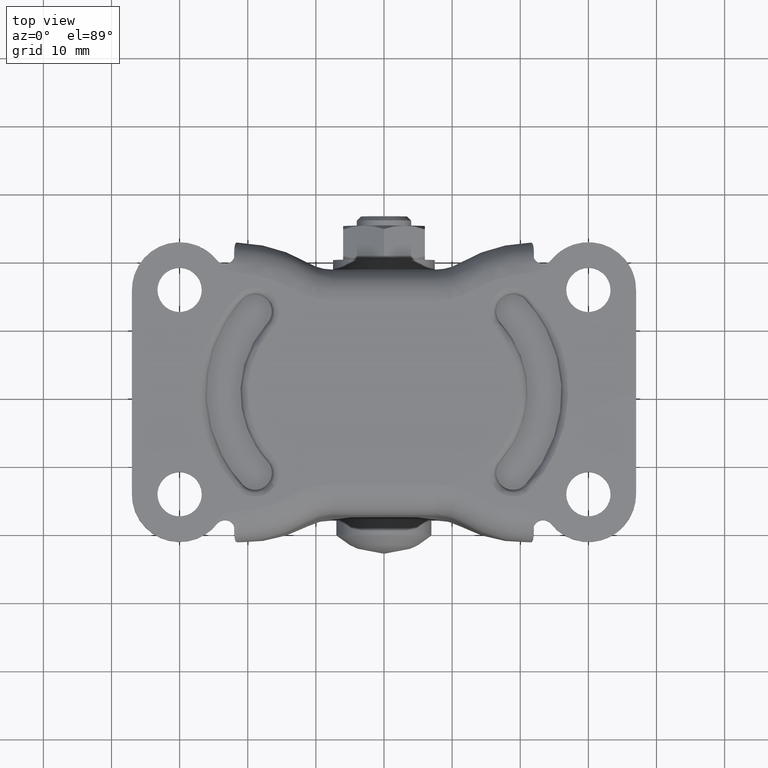
[diagram: clean part render]
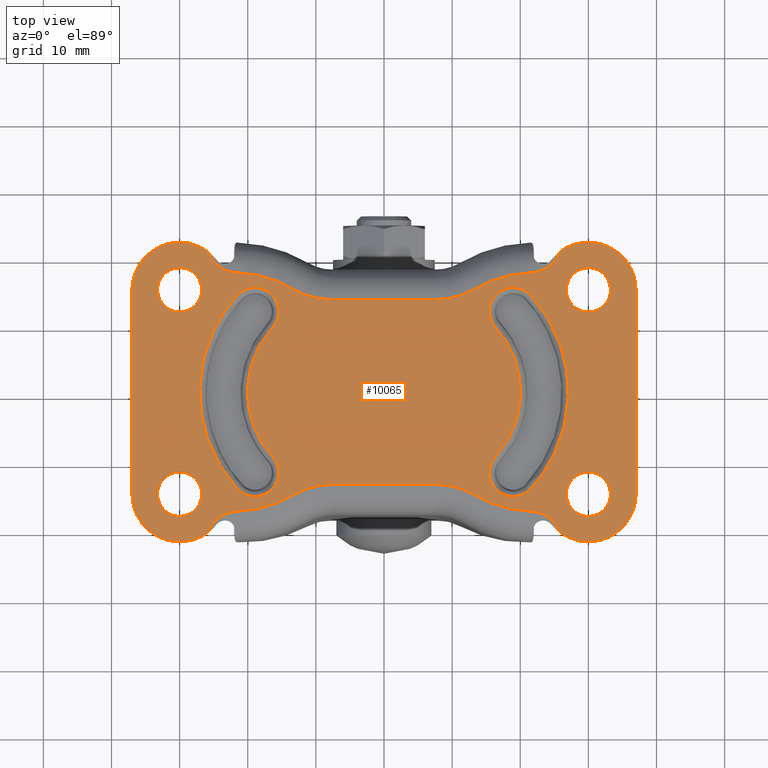
[diagram: same view with one face highlighted and labeled with its STEP entity id]
A machine part, top view. The second image highlights one B-rep face of the part: STEP entity #10065.
In plain terms, the highlighted face is a freeform B-spline surface patch.
Its self-contained STEP definition (entity closure, byte-faithful):
#2337=CARTESIAN_POINT('',(-30.383611262793419,11.772719039336801,-2.484500E-017));
#2338=VERTEX_POINT('',#2337);
#2339=CARTESIAN_POINT('',(-26.750000000000000,14.999999999999821,0.0));
#2340=VERTEX_POINT('',#2339);
#2341=CARTESIAN_POINT('',(-30.383611262793419,11.772719039336794,-2.484500E-017));
#2342=CARTESIAN_POINT('',(-30.192478389029340,11.749999999999824,0.0));
#2343=CARTESIAN_POINT('',(-30.0,11.749999999999821,0.0));
#2344=CARTESIAN_POINT('',(-26.750000000000007,11.749999999999819,0.0));
#2345=CARTESIAN_POINT('',(-26.750000000000000,14.999999999999821,0.0));
#2353=(BOUNDED_CURVE()B_SPLINE_CURVE(2,(#2341,#2342,#2343,#2344,#2345),.UNSPECIFIED.,.F.,.U.)B_SPLINE_CURVE_WITH_KNOTS((3,2,3),(0.229562473498996,0.250000000000000,0.500000000000000),.UNSPECIFIED.)CURVE()GEOMETRIC_REPRESENTATION_ITEM()RATIONAL_B_SPLINE_CURVE((0.956026754155255,0.976055948314143,1.0,0.707106781186547,1.0))REPRESENTATION_ITEM(''));
#2354=EDGE_CURVE('',#2338,#2340,#2353,.T.);
#2356=CARTESIAN_POINT('',(-29.801592246333168,18.243938094859971,-2.081668E-017));
#2357=VERTEX_POINT('',#2356);
#2358=CARTESIAN_POINT('',(-26.750000000000000,14.999999999999821,0.0));
#2359=CARTESIAN_POINT('',(-26.750000000000007,18.057294717106135,0.0));
#2360=CARTESIAN_POINT('',(-29.801592246333161,18.243938094859974,-2.081668E-017));
#2368=(BOUNDED_CURVE()B_SPLINE_CURVE(2,(#2358,#2359,#2360),.UNSPECIFIED.,.F.,.U.)B_SPLINE_CURVE_WITH_KNOTS((3,3),(0.500000000000000,0.739332962222973),.UNSPECIFIED.)CURVE()GEOMETRIC_REPRESENTATION_ITEM()RATIONAL_B_SPLINE_CURVE((1.0,0.719603993305420,0.976072041632492))REPRESENTATION_ITEM(''));
#2369=EDGE_CURVE('',#2340,#2357,#2368,.T.);
#2436=CARTESIAN_POINT('',(-33.250000000000000,14.999999999999821,0.0));
#2437=VERTEX_POINT('',#2436);
#2438=CARTESIAN_POINT('',(-33.250000000000000,14.999999999999821,0.0));
#2439=CARTESIAN_POINT('',(-33.250000000000007,12.113432790944220,0.0));
#2440=CARTESIAN_POINT('',(-30.383611262793416,11.772719039336803,-2.484500E-017));
#2448=(BOUNDED_CURVE()B_SPLINE_CURVE(2,(#2438,#2439,#2440),.UNSPECIFIED.,.F.,.U.)B_SPLINE_CURVE_WITH_KNOTS((3,3),(0.0,0.229562473498997),.UNSPECIFIED.)CURVE()GEOMETRIC_REPRESENTATION_ITEM()RATIONAL_B_SPLINE_CURVE((1.0,0.731050832872404,0.956026754155255))REPRESENTATION_ITEM(''));
#2449=EDGE_CURVE('',#2437,#2338,#2448,.T.);
#2483=CARTESIAN_POINT('',(-29.801592246333165,18.243938094859967,-2.081668E-017));
#2484=CARTESIAN_POINT('',(-29.900703519100531,18.249999999999826,0.0));
#2485=CARTESIAN_POINT('',(-30.0,18.249999999999819,0.0));
#2486=CARTESIAN_POINT('',(-33.249999999999993,18.249999999999826,0.0));
#2487=CARTESIAN_POINT('',(-33.250000000000000,14.999999999999821,0.0));
#2495=(BOUNDED_CURVE()B_SPLINE_CURVE(2,(#2483,#2484,#2485,#2486,#2487),.UNSPECIFIED.,.F.,.U.)B_SPLINE_CURVE_WITH_KNOTS((3,2,3),(0.739332962222974,0.750000000000000,1.0),.UNSPECIFIED.)CURVE()GEOMETRIC_REPRESENTATION_ITEM()RATIONAL_B_SPLINE_CURVE((0.976072041632493,0.987502787881128,1.0,0.707106781186547,1.0))REPRESENTATION_ITEM(''));
#2496=EDGE_CURVE('',#2357,#2437,#2495,.T.);
#2523=CARTESIAN_POINT('',(-30.383611262793419,-18.227280960663020,-2.484500E-017));
#2524=VERTEX_POINT('',#2523);
#2525=CARTESIAN_POINT('',(-26.750000000000000,-15.0,0.0));
#2526=VERTEX_POINT('',#2525);
#2527=CARTESIAN_POINT('',(-30.383611262793419,-18.227280960663016,-2.484500E-017));
#2528=CARTESIAN_POINT('',(-30.192478389029347,-18.250000000000000,0.0));
#2529=CARTESIAN_POINT('',(-30.0,-18.250000000000000,0.0));
#2530=CARTESIAN_POINT('',(-26.750000000000007,-18.250000000000000,0.0));
#2531=CARTESIAN_POINT('',(-26.750000000000000,-15.0,0.0));
#2539=(BOUNDED_CURVE()B_SPLINE_CURVE(2,(#2527,#2528,#2529,#2530,#2531),.UNSPECIFIED.,.F.,.U.)B_SPLINE_CURVE_WITH_KNOTS((3,2,3),(0.229562473498996,0.250000000000000,0.500000000000000),.UNSPECIFIED.)CURVE()GEOMETRIC_REPRESENTATION_ITEM()RATIONAL_B_SPLINE_CURVE((0.956026754155255,0.976055948314143,1.0,0.707106781186547,1.0))REPRESENTATION_ITEM(''));
#2540=EDGE_CURVE('',#2524,#2526,#2539,.T.);
#2542=CARTESIAN_POINT('',(-29.801592246333168,-11.756061905139861,-2.081668E-017));
#2543=VERTEX_POINT('',#2542);
#2544=CARTESIAN_POINT('',(-26.750000000000000,-15.0,0.0));
#2545=CARTESIAN_POINT('',(-26.750000000000007,-11.942705282893685,0.0));
#2546=CARTESIAN_POINT('',(-29.801592246333161,-11.756061905139855,-2.081668E-017));
#2554=(BOUNDED_CURVE()B_SPLINE_CURVE(2,(#2544,#2545,#2546),.UNSPECIFIED.,.F.,.U.)B_SPLINE_CURVE_WITH_KNOTS((3,3),(0.500000000000000,0.739332962222973),.UNSPECIFIED.)CURVE()GEOMETRIC_REPRESENTATION_ITEM()RATIONAL_B_SPLINE_CURVE((1.0,0.719603993305420,0.976072041632492))REPRESENTATION_ITEM(''));
#2555=EDGE_CURVE('',#2526,#2543,#2554,.T.);
#2622=CARTESIAN_POINT('',(-33.250000000000000,-15.0,0.0));
#2623=VERTEX_POINT('',#2622);
#2624=CARTESIAN_POINT('',(-33.250000000000000,-15.0,0.0));
#2625=CARTESIAN_POINT('',(-33.250000000000000,-17.886567209055592,0.0));
#2626=CARTESIAN_POINT('',(-30.383611262793426,-18.227280960663020,-2.484500E-017));
#2634=(BOUNDED_CURVE()B_SPLINE_CURVE(2,(#2624,#2625,#2626),.UNSPECIFIED.,.F.,.U.)B_SPLINE_CURVE_WITH_KNOTS((3,3),(0.0,0.229562473498996),.UNSPECIFIED.)CURVE()GEOMETRIC_REPRESENTATION_ITEM()RATIONAL_B_SPLINE_CURVE((1.0,0.731050832872405,0.956026754155255))REPRESENTATION_ITEM(''));
#2635=EDGE_CURVE('',#2623,#2524,#2634,.T.);
#2669=CARTESIAN_POINT('',(-29.801592246333165,-11.756061905139854,-2.081668E-017));
#2670=CARTESIAN_POINT('',(-29.900703519100531,-11.750000000000002,0.0));
#2671=CARTESIAN_POINT('',(-30.0,-11.750000000000000,0.0));
#2672=CARTESIAN_POINT('',(-33.249999999999993,-11.750000000000004,0.0));
#2673=CARTESIAN_POINT('',(-33.250000000000000,-15.0,0.0));
#2681=(BOUNDED_CURVE()B_SPLINE_CURVE(2,(#2669,#2670,#2671,#2672,#2673),.UNSPECIFIED.,.F.,.U.)B_SPLINE_CURVE_WITH_KNOTS((3,2,3),(0.739332962222974,0.750000000000000,1.0),.UNSPECIFIED.)CURVE()GEOMETRIC_REPRESENTATION_ITEM()RATIONAL_B_SPLINE_CURVE((0.976072041632493,0.987502787881128,1.0,0.707106781186547,1.0))REPRESENTATION_ITEM(''));
#2682=EDGE_CURVE('',#2543,#2623,#2681,.T.);
#2709=CARTESIAN_POINT('',(29.616388737206581,11.772719039336801,-2.484500E-017));
#2710=VERTEX_POINT('',#2709);
#2711=CARTESIAN_POINT('',(33.250000000000000,14.999999999999821,0.0));
#2712=VERTEX_POINT('',#2711);
#2713=CARTESIAN_POINT('',(29.616388737206584,11.772719039336794,-2.484500E-017));
#2714=CARTESIAN_POINT('',(29.807521610970657,11.749999999999824,0.0));
#2715=CARTESIAN_POINT('',(30.0,11.749999999999821,0.0));
#2716=CARTESIAN_POINT('',(33.249999999999993,11.749999999999819,0.0));
#2717=CARTESIAN_POINT('',(33.250000000000000,14.999999999999821,0.0));
#2725=(BOUNDED_CURVE()B_SPLINE_CURVE(2,(#2713,#2714,#2715,#2716,#2717),.UNSPECIFIED.,.F.,.U.)B_SPLINE_CURVE_WITH_KNOTS((3,2,3),(0.229562473498996,0.250000000000000,0.500000000000000),.UNSPECIFIED.)CURVE()GEOMETRIC_REPRESENTATION_ITEM()RATIONAL_B_SPLINE_CURVE((0.956026754155255,0.976055948314143,1.0,0.707106781186547,1.0))REPRESENTATION_ITEM(''));
#2726=EDGE_CURVE('',#2710,#2712,#2725,.T.);
#2728=CARTESIAN_POINT('',(30.198407753666839,18.243938094859971,-2.081668E-017));
#2729=VERTEX_POINT('',#2728);
#2730=CARTESIAN_POINT('',(33.250000000000000,14.999999999999821,0.0));
#2731=CARTESIAN_POINT('',(33.250000000000000,18.057294717106135,0.0));
#2732=CARTESIAN_POINT('',(30.198407753666832,18.243938094859963,-2.081668E-017));
#2740=(BOUNDED_CURVE()B_SPLINE_CURVE(2,(#2730,#2731,#2732),.UNSPECIFIED.,.F.,.U.)B_SPLINE_CURVE_WITH_KNOTS((3,3),(0.500000000000000,0.739332962222973),.UNSPECIFIED.)CURVE()GEOMETRIC_REPRESENTATION_ITEM()RATIONAL_B_SPLINE_CURVE((1.0,0.719603993305420,0.976072041632492))REPRESENTATION_ITEM(''));
#2741=EDGE_CURVE('',#2712,#2729,#2740,.T.);
#2808=CARTESIAN_POINT('',(26.750000000000000,14.999999999999821,0.0));
#2809=VERTEX_POINT('',#2808);
#2810=CARTESIAN_POINT('',(26.750000000000000,14.999999999999821,0.0));
#2811=CARTESIAN_POINT('',(26.749999999999993,12.113432790944220,0.0));
#2812=CARTESIAN_POINT('',(29.616388737206581,11.772719039336804,-2.484500E-017));
#2820=(BOUNDED_CURVE()B_SPLINE_CURVE(2,(#2810,#2811,#2812),.UNSPECIFIED.,.F.,.U.)B_SPLINE_CURVE_WITH_KNOTS((3,3),(0.0,0.229562473498996),.UNSPECIFIED.)CURVE()GEOMETRIC_REPRESENTATION_ITEM()RATIONAL_B_SPLINE_CURVE((1.0,0.731050832872404,0.956026754155255))REPRESENTATION_ITEM(''));
#2821=EDGE_CURVE('',#2809,#2710,#2820,.T.);
#2855=CARTESIAN_POINT('',(30.198407753666832,18.243938094859971,-2.081668E-017));
#2856=CARTESIAN_POINT('',(30.099296480899472,18.249999999999815,0.0));
#2857=CARTESIAN_POINT('',(30.0,18.249999999999819,0.0));
#2858=CARTESIAN_POINT('',(26.750000000000007,18.249999999999826,0.0));
#2859=CARTESIAN_POINT('',(26.750000000000000,14.999999999999821,0.0));
#2867=(BOUNDED_CURVE()B_SPLINE_CURVE(2,(#2855,#2856,#2857,#2858,#2859),.UNSPECIFIED.,.F.,.U.)B_SPLINE_CURVE_WITH_KNOTS((3,2,3),(0.739332962222974,0.750000000000000,1.0),.UNSPECIFIED.)CURVE()GEOMETRIC_REPRESENTATION_ITEM()RATIONAL_B_SPLINE_CURVE((0.976072041632493,0.987502787881128,1.0,0.707106781186547,1.0))REPRESENTATION_ITEM(''));
#2868=EDGE_CURVE('',#2729,#2809,#2867,.T.);
#2895=CARTESIAN_POINT('',(29.616388737206581,-18.227280960663020,-2.484500E-017));
#2896=VERTEX_POINT('',#2895);
#2897=CARTESIAN_POINT('',(33.250000000000000,-15.0,0.0));
#2898=VERTEX_POINT('',#2897);
#2899=CARTESIAN_POINT('',(29.616388737206581,-18.227280960663023,-2.484500E-017));
#2900=CARTESIAN_POINT('',(29.807521610970660,-18.249999999999996,0.0));
#2901=CARTESIAN_POINT('',(30.0,-18.250000000000000,0.0));
#2902=CARTESIAN_POINT('',(33.249999999999993,-18.250000000000000,0.0));
#2903=CARTESIAN_POINT('',(33.250000000000000,-15.0,0.0));
#2911=(BOUNDED_CURVE()B_SPLINE_CURVE(2,(#2899,#2900,#2901,#2902,#2903),.UNSPECIFIED.,.F.,.U.)B_SPLINE_CURVE_WITH_KNOTS((3,2,3),(0.229562473498996,0.250000000000000,0.500000000000000),.UNSPECIFIED.)CURVE()GEOMETRIC_REPRESENTATION_ITEM()RATIONAL_B_SPLINE_CURVE((0.956026754155255,0.976055948314143,1.0,0.707106781186547,1.0))REPRESENTATION_ITEM(''));
#2912=EDGE_CURVE('',#2896,#2898,#2911,.T.);
#2914=CARTESIAN_POINT('',(30.198407753666839,-11.756061905139850,-2.081668E-017));
#2915=VERTEX_POINT('',#2914);
#2916=CARTESIAN_POINT('',(33.250000000000000,-15.0,0.0));
#2917=CARTESIAN_POINT('',(33.250000000000000,-11.942705282893685,0.0));
#2918=CARTESIAN_POINT('',(30.198407753666832,-11.756061905139855,-2.081668E-017));
#2926=(BOUNDED_CURVE()B_SPLINE_CURVE(2,(#2916,#2917,#2918),.UNSPECIFIED.,.F.,.U.)B_SPLINE_CURVE_WITH_KNOTS((3,3),(0.500000000000000,0.739332962222973),.UNSPECIFIED.)CURVE()GEOMETRIC_REPRESENTATION_ITEM()RATIONAL_B_SPLINE_CURVE((1.0,0.719603993305420,0.976072041632492))REPRESENTATION_ITEM(''));
#2927=EDGE_CURVE('',#2898,#2915,#2926,.T.);
#2994=CARTESIAN_POINT('',(26.750000000000000,-15.0,0.0));
#2995=VERTEX_POINT('',#2994);
#2996=CARTESIAN_POINT('',(26.750000000000000,-15.0,0.0));
#2997=CARTESIAN_POINT('',(26.749999999999993,-17.886567209055599,0.0));
#2998=CARTESIAN_POINT('',(29.616388737206584,-18.227280960663023,-2.484500E-017));
#3006=(BOUNDED_CURVE()B_SPLINE_CURVE(2,(#2996,#2997,#2998),.UNSPECIFIED.,.F.,.U.)B_SPLINE_CURVE_WITH_KNOTS((3,3),(0.0,0.229562473498996),.UNSPECIFIED.)CURVE()GEOMETRIC_REPRESENTATION_ITEM()RATIONAL_B_SPLINE_CURVE((1.0,0.731050832872404,0.956026754155255))REPRESENTATION_ITEM(''));
#3007=EDGE_CURVE('',#2995,#2896,#3006,.T.);
#3041=CARTESIAN_POINT('',(30.198407753666832,-11.756061905139855,-2.081668E-017));
#3042=CARTESIAN_POINT('',(30.099296480899472,-11.750000000000004,0.0));
#3043=CARTESIAN_POINT('',(30.0,-11.750000000000000,0.0));
#3044=CARTESIAN_POINT('',(26.750000000000007,-11.750000000000004,0.0));
#3045=CARTESIAN_POINT('',(26.750000000000000,-15.0,0.0));
#3053=(BOUNDED_CURVE()B_SPLINE_CURVE(2,(#3041,#3042,#3043,#3044,#3045),.UNSPECIFIED.,.F.,.U.)B_SPLINE_CURVE_WITH_KNOTS((3,2,3),(0.739332962222974,0.750000000000000,1.0),.UNSPECIFIED.)CURVE()GEOMETRIC_REPRESENTATION_ITEM()RATIONAL_B_SPLINE_CURVE((0.976072041632493,0.987502787881128,1.0,0.707106781186547,1.0))REPRESENTATION_ITEM(''));
#3054=EDGE_CURVE('',#2915,#2995,#3053,.T.);
#5459=CARTESIAN_POINT('',(-25.811329888295749,20.608479535071201,0.0));
#5460=VERTEX_POINT('',#5459);
#5474=CARTESIAN_POINT('',(-21.484265850218950,17.492088912298900,0.0));
#5475=VERTEX_POINT('',#5474);
#5476=CARTESIAN_POINT('',(-21.484265850218950,17.492088912298900,0.0));
#5477=CARTESIAN_POINT('',(-21.603383213129010,17.495743704170309,0.0));
#5478=CARTESIAN_POINT('',(-21.722158548124909,17.503726703638581,0.0));
#5479=CARTESIAN_POINT('',(-21.959026405725790,17.528333382634109,0.0));
#5480=CARTESIAN_POINT('',(-22.077092583931659,17.544984488697281,0.0));
#5481=CARTESIAN_POINT('',(-22.426547924071730,17.607248886891320,0.0));
#5482=CARTESIAN_POINT('',(-22.654490383674279,17.665208486618280,0.0));
#5483=CARTESIAN_POINT('',(-23.100443050177020,17.813624331418350,0.0));
#5484=CARTESIAN_POINT('',(-23.318518422526392,17.904103882154502,0.0));
#5485=CARTESIAN_POINT('',(-23.743908252633570,18.119320720896820,0.0));
#5486=CARTESIAN_POINT('',(-23.945852131464530,18.241335012722860,0.0));
#5487=CARTESIAN_POINT('',(-24.328809851242990,18.513408842431360,0.0));
#5488=CARTESIAN_POINT('',(-24.509825656312628,18.663465748484452,0.0));
#5489=CARTESIAN_POINT('',(-24.722437996194909,18.869337163501420,0.0));
#5490=CARTESIAN_POINT('',(-24.764273718392921,18.911431652881980,0.0));
#5491=CARTESIAN_POINT('',(-24.846540707122859,18.997502534817350,0.0));
#5492=CARTESIAN_POINT('',(-24.886905566092359,19.041417946322468,0.0));
#5493=CARTESIAN_POINT('',(-25.004800353540158,19.174808146622329,0.0));
#5494=CARTESIAN_POINT('',(-25.079486635391621,19.266286797667259,0.0));
#5495=CARTESIAN_POINT('',(-25.291991180504471,19.548263164655431,0.0));
#5496=CARTESIAN_POINT('',(-25.418324794318519,19.746255839746791,0.0));
#5497=CARTESIAN_POINT('',(-25.584271886973191,20.058615912029079,0.0));
#5498=CARTESIAN_POINT('',(-25.635645089158231,20.165308835004360,0.0));
#5499=CARTESIAN_POINT('',(-25.730187854273488,20.384048430876700,0.0));
#5500=CARTESIAN_POINT('',(-25.773072197983112,20.495473449877331,0.0));
#5501=CARTESIAN_POINT('',(-25.811329888295749,20.608479535071201,0.0));
#5502=B_SPLINE_CURVE_WITH_KNOTS('',3,(#5476,#5477,#5478,#5479,#5480,#5481,#5482,#5483,#5484,#5485,#5486,#5487,#5488,#5489,#5490,#5491,#5492,#5493,#5494,#5495,#5496,#5497,#5498,#5499,#5500,#5501),.UNSPECIFIED.,.F.,.U.,(4,2,2,2,2,2,2,2,2,2,2,2,4),(0.0,0.062499999999999,0.124999999999998,0.249999999999997,0.374999999999996,0.499999999999996,0.624999999999995,0.656249999999995,0.687499999999995,0.749999999999997,0.875000000000000,0.937500000000000,1.0),.UNSPECIFIED.);
#5503=EDGE_CURVE('',#5475,#5460,#5502,.T.);
#5628=CARTESIAN_POINT('',(-13.418852226916959,15.145858966433151,0.0));
#5629=VERTEX_POINT('',#5628);
#5659=CARTESIAN_POINT('',(-13.418852226916959,15.145858966433151,0.0));
#5660=CARTESIAN_POINT('',(-17.148994104475438,17.359072905651573,0.0));
#5661=CARTESIAN_POINT('',(-21.484265850218950,17.492088912298929,0.0));
#5669=(BOUNDED_CURVE()B_SPLINE_CURVE(2,(#5659,#5660,#5661),.UNSPECIFIED.,.F.,.U.)CURVE()GEOMETRIC_REPRESENTATION_ITEM()QUASI_UNIFORM_CURVE()RATIONAL_B_SPLINE_CURVE((1.0,0.968312146698987,1.0))REPRESENTATION_ITEM(''));
#5670=EDGE_CURVE('',#5629,#5475,#5669,.T.);
#5692=CARTESIAN_POINT('',(-7.601734732925700,13.550000000000001,0.0));
#5693=VERTEX_POINT('',#5692);
#5723=CARTESIAN_POINT('',(-7.601734732925700,13.550000000000001,0.0));
#5724=CARTESIAN_POINT('',(-10.729196454978963,13.549999119394657,0.0));
#5725=CARTESIAN_POINT('',(-13.418852226916970,15.145858966433151,0.0));
#5733=(BOUNDED_CURVE()B_SPLINE_CURVE(2,(#5723,#5724,#5725),.UNSPECIFIED.,.F.,.U.)CURVE()GEOMETRIC_REPRESENTATION_ITEM()QUASI_UNIFORM_CURVE()RATIONAL_B_SPLINE_CURVE((1.0,0.964368245974227,1.0))REPRESENTATION_ITEM(''));
#5734=EDGE_CURVE('',#5693,#5629,#5733,.T.);
#5753=CARTESIAN_POINT('',(7.601737942846899,13.550000000000001,0.0));
#5754=VERTEX_POINT('',#5753);
#5776=CARTESIAN_POINT('',(7.601737942846899,13.550000000000001,0.0));
#5777=CARTESIAN_POINT('',(-7.601734732925700,13.550000000000001,0.0));
#5778=QUASI_UNIFORM_CURVE('',1,(#5776,#5777),.UNSPECIFIED.,.F.,.U.);
#5779=EDGE_CURVE('',#5754,#5693,#5778,.T.);
#5801=CARTESIAN_POINT('',(13.418852226916821,15.145858966433151,0.0));
#5802=VERTEX_POINT('',#5801);
#5832=CARTESIAN_POINT('',(13.418852226916830,15.145858966433130,0.0));
#5833=CARTESIAN_POINT('',(10.729197939147538,13.549999999999999,0.0));
#5834=CARTESIAN_POINT('',(7.601737942846899,13.550000000000001,0.0));
#5842=(BOUNDED_CURVE()B_SPLINE_CURVE(2,(#5832,#5833,#5834),.UNSPECIFIED.,.F.,.U.)CURVE()GEOMETRIC_REPRESENTATION_ITEM()QUASI_UNIFORM_CURVE()RATIONAL_B_SPLINE_CURVE((1.0,0.964368283221072,1.0))REPRESENTATION_ITEM(''));
#5843=EDGE_CURVE('',#5802,#5754,#5842,.T.);
#5865=CARTESIAN_POINT('',(21.484266556458799,17.492088933967949,0.0));
#5866=VERTEX_POINT('',#5865);
#5896=CARTESIAN_POINT('',(21.484266556458810,17.492088933967960,0.0));
#5897=CARTESIAN_POINT('',(17.148994428516772,17.359073097915818,0.0));
#5898=CARTESIAN_POINT('',(13.418852226916830,15.145858966433151,0.0));
#5906=(BOUNDED_CURVE()B_SPLINE_CURVE(2,(#5896,#5897,#5898),.UNSPECIFIED.,.F.,.U.)CURVE()GEOMETRIC_REPRESENTATION_ITEM()QUASI_UNIFORM_CURVE()RATIONAL_B_SPLINE_CURVE((1.0,0.968312141452394,1.0))REPRESENTATION_ITEM(''));
#5907=EDGE_CURVE('',#5866,#5802,#5906,.T.);
#6057=CARTESIAN_POINT('',(25.811331118543048,20.608480453876250,0.0));
#6058=VERTEX_POINT('',#6057);
#6059=CARTESIAN_POINT('',(25.811331118543048,20.608480453876250,0.0));
#6060=CARTESIAN_POINT('',(25.734876977442362,20.382649012749368,0.0));
#6061=CARTESIAN_POINT('',(25.641106915643711,20.166089080188339,0.0));
#6062=CARTESIAN_POINT('',(25.420880339941942,19.750578404918659,0.0));
#6063=CARTESIAN_POINT('',(25.294410312498130,19.551616285075340,0.0));
#6064=CARTESIAN_POINT('',(25.115537968417339,19.314087338812651,0.0));
#6065=CARTESIAN_POINT('',(25.078723926748921,19.267161662336310,0.0));
#6066=CARTESIAN_POINT('',(25.003649805187312,19.175234823182180,0.0));
#6067=CARTESIAN_POINT('',(24.965313191825921,19.130129615385140,0.0));
#6068=CARTESIAN_POINT('',(24.847949080114962,18.997340984830480,0.0));
#6069=CARTESIAN_POINT('',(24.766570856343151,18.912180748537359,0.0));
#6070=CARTESIAN_POINT('',(24.513248478083661,18.666561803001930,0.0));
#6071=CARTESIAN_POINT('',(24.332169380936271,18.515908221766001,0.0));
#6072=CARTESIAN_POINT('',(24.090479523084781,18.344057723574419,0.0));
#6073=CARTESIAN_POINT('',(24.041275612655689,18.310454353578699,0.0));
#6074=CARTESIAN_POINT('',(23.941788957687649,18.245237458435010,0.0));
#6075=CARTESIAN_POINT('',(23.891575919974059,18.213663554685720,0.0));
#6076=CARTESIAN_POINT('',(23.739555270228198,18.121984698522461,0.0));
#6077=CARTESIAN_POINT('',(23.636368179054841,18.064918069597869,0.0));
#6078=CARTESIAN_POINT('',(23.321428206761141,17.905564847510441,0.0));
#6079=CARTESIAN_POINT('',(23.104326609287799,17.815058882302889,0.0));
#6080=CARTESIAN_POINT('',(22.824019945166871,17.721594151849452,0.0));
#6081=CARTESIAN_POINT('',(22.767509731892410,17.703889871680090,0.0));
#6082=CARTESIAN_POINT('',(22.653581710271371,17.670480303094401,0.0));
#6083=CARTESIAN_POINT('',(22.596074910321398,17.654754681873420,0.0));
#6084=CARTESIAN_POINT('',(22.423231268830211,17.610877843354650,0.0));
#6085=CARTESIAN_POINT('',(22.307360042902008,17.585945270539948,0.0));
#6086=CARTESIAN_POINT('',(21.957853867196420,17.523875537383930,0.0));
#6087=CARTESIAN_POINT('',(21.722337256960952,17.499393475028409,0.0));
#6088=CARTESIAN_POINT('',(21.484266556458799,17.492088933967949,0.0));
#6089=B_SPLINE_CURVE_WITH_KNOTS('',3,(#6059,#6060,#6061,#6062,#6063,#6064,#6065,#6066,#6067,#6068,#6069,#6070,#6071,#6072,#6073,#6074,#6075,#6076,#6077,#6078,#6079,#6080,#6081,#6082,#6083,#6084,#6085,#6086,#6087,#6088),.UNSPECIFIED.,.F.,.U.,(4,2,2,2,2,2,2,2,2,2,2,2,2,2,4),(0.0,0.124999999999998,0.249999999999996,0.281249999999996,0.312499999999996,0.374999999999997,0.499999999999996,0.531249999999995,0.562499999999995,0.624999999999994,0.749999999999993,0.781249999999994,0.812499999999994,0.874999999999995,1.0),.UNSPECIFIED.);
#6090=EDGE_CURVE('',#6058,#5866,#6089,.T.);
#6237=CARTESIAN_POINT('',(25.811331118543048,-20.608480453876250,0.0));
#6238=VERTEX_POINT('',#6237);
#6252=CARTESIAN_POINT('',(21.484266556458799,-17.492088933967949,0.0));
#6253=VERTEX_POINT('',#6252);
#6254=CARTESIAN_POINT('',(21.484266556458799,-17.492088933967949,0.0));
#6255=CARTESIAN_POINT('',(21.603383943726929,-17.495743721577171,0.0));
#6256=CARTESIAN_POINT('',(21.722159303134479,-17.503726718498140,0.0));
#6257=CARTESIAN_POINT('',(21.959027209664480,-17.528333395837560,0.0));
#6258=CARTESIAN_POINT('',(22.077093411812161,-17.544984502735652,0.0));
#6259=CARTESIAN_POINT('',(22.426548822570378,-17.607248908321541,0.0));
#6260=CARTESIAN_POINT('',(22.654491328067870,-17.665208519481642,0.0));
#6261=CARTESIAN_POINT('',(23.100444083825561,-17.813624400641419,0.0));
#6262=CARTESIAN_POINT('',(23.318519505974098,-17.904103979549479,0.0));
#6263=CARTESIAN_POINT('',(23.743909406537679,-18.119320877380790,0.0));
#6264=CARTESIAN_POINT('',(23.945853317371650,-18.241335204384431,0.0));
#6265=CARTESIAN_POINT('',(24.328811093924099,-18.513409116691889,0.0));
#6266=CARTESIAN_POINT('',(24.509826923781059,-18.663466070144182,0.0));
#6267=CARTESIAN_POINT('',(24.722439288928790,-18.869337553738941,0.0));
#6268=CARTESIAN_POINT('',(24.764275015890259,-18.911432057306950,0.0));
#6269=CARTESIAN_POINT('',(24.846542013520210,-18.997502968628542,0.0));
#6270=CARTESIAN_POINT('',(24.886906873620092,-19.041418392077119,0.0));
#6271=CARTESIAN_POINT('',(25.004801665520631,-19.174808630917539,0.0));
#6272=CARTESIAN_POINT('',(25.079487949067769,-19.266287308717420,0.0));
#6273=CARTESIAN_POINT('',(25.291992495058700,-19.548263759398719,0.0));
#6274=CARTESIAN_POINT('',(25.418326103914250,-19.746256494807980,0.0));
#6275=CARTESIAN_POINT('',(25.584273178278210,-20.058616666038919,0.0));
#6276=CARTESIAN_POINT('',(25.635646372542919,-20.165309623419571,0.0));
#6277=CARTESIAN_POINT('',(25.730189117493509,-20.384049291408420,0.0));
#6278=CARTESIAN_POINT('',(25.773073444899939,-20.495474337417420,0.0));
#6279=CARTESIAN_POINT('',(25.811331118543048,-20.608480453876250,0.0));
#6280=B_SPLINE_CURVE_WITH_KNOTS('',3,(#6254,#6255,#6256,#6257,#6258,#6259,#6260,#6261,#6262,#6263,#6264,#6265,#6266,#6267,#6268,#6269,#6270,#6271,#6272,#6273,#6274,#6275,#6276,#6277,#6278,#6279),.UNSPECIFIED.,.F.,.U.,(4,2,2,2,2,2,2,2,2,2,2,2,4),(0.0,0.062500000000000,0.125000000000001,0.250000000000000,0.374999999999999,0.499999999999998,0.624999999999996,0.656249999999996,0.687499999999995,0.749999999999996,0.874999999999998,0.937499999999999,1.0),.UNSPECIFIED.);
#6281=EDGE_CURVE('',#6253,#6238,#6280,.T.);
#6406=CARTESIAN_POINT('',(13.418852226916860,-15.145858966433151,0.0));
#6407=VERTEX_POINT('',#6406);
#6437=CARTESIAN_POINT('',(13.418852226916851,-15.145858966433160,0.0));
#6438=CARTESIAN_POINT('',(17.148994428516790,-17.359073097915825,0.0));
#6439=CARTESIAN_POINT('',(21.484266556458799,-17.492088933967960,0.0));
#6447=(BOUNDED_CURVE()B_SPLINE_CURVE(2,(#6437,#6438,#6439),.UNSPECIFIED.,.F.,.U.)CURVE()GEOMETRIC_REPRESENTATION_ITEM()QUASI_UNIFORM_CURVE()RATIONAL_B_SPLINE_CURVE((1.0,0.968312141452394,1.0))REPRESENTATION_ITEM(''));
#6448=EDGE_CURVE('',#6407,#6253,#6447,.T.);
#6470=CARTESIAN_POINT('',(7.601734732926101,-13.550000000000001,0.0));
#6471=VERTEX_POINT('',#6470);
#6501=CARTESIAN_POINT('',(7.601734732926101,-13.550000000000001,0.0));
#6502=CARTESIAN_POINT('',(10.729196454979085,-13.549999119394796,0.0));
#6503=CARTESIAN_POINT('',(13.418852226916860,-15.145858966433151,0.0));
#6511=(BOUNDED_CURVE()B_SPLINE_CURVE(2,(#6501,#6502,#6503),.UNSPECIFIED.,.F.,.U.)CURVE()GEOMETRIC_REPRESENTATION_ITEM()QUASI_UNIFORM_CURVE()RATIONAL_B_SPLINE_CURVE((1.0,0.964368245974233,1.0))REPRESENTATION_ITEM(''));
#6512=EDGE_CURVE('',#6471,#6407,#6511,.T.);
#6531=CARTESIAN_POINT('',(-7.601737942847009,-13.550000000000001,0.0));
#6532=VERTEX_POINT('',#6531);
#6554=CARTESIAN_POINT('',(-7.601737942847009,-13.550000000000001,0.0));
#6555=CARTESIAN_POINT('',(7.601734732926101,-13.550000000000001,0.0));
#6556=QUASI_UNIFORM_CURVE('',1,(#6554,#6555),.UNSPECIFIED.,.F.,.U.);
#6557=EDGE_CURVE('',#6532,#6471,#6556,.T.);
#6579=CARTESIAN_POINT('',(-13.418852226916959,-15.145858966433151,0.0));
#6580=VERTEX_POINT('',#6579);
#6610=CARTESIAN_POINT('',(-13.418852226916959,-15.145858966433151,0.0));
#6611=CARTESIAN_POINT('',(-10.729197939147662,-13.550000000000001,0.0));
#6612=CARTESIAN_POINT('',(-7.601737942847009,-13.550000000000001,0.0));
#6620=(BOUNDED_CURVE()B_SPLINE_CURVE(2,(#6610,#6611,#6612),.UNSPECIFIED.,.F.,.U.)CURVE()GEOMETRIC_REPRESENTATION_ITEM()QUASI_UNIFORM_CURVE()RATIONAL_B_SPLINE_CURVE((1.0,0.964368283221071,1.0))REPRESENTATION_ITEM(''));
#6621=EDGE_CURVE('',#6580,#6532,#6620,.T.);
#6643=CARTESIAN_POINT('',(-21.484265850218950,-17.492088912298900,0.0));
#6644=VERTEX_POINT('',#6643);
#6674=CARTESIAN_POINT('',(-21.484265850218950,-17.492088912298929,0.0));
#6675=CARTESIAN_POINT('',(-17.148994104475438,-17.359072905651573,0.0));
#6676=CARTESIAN_POINT('',(-13.418852226916959,-15.145858966433151,0.0));
#6684=(BOUNDED_CURVE()B_SPLINE_CURVE(2,(#6674,#6675,#6676),.UNSPECIFIED.,.F.,.U.)CURVE()GEOMETRIC_REPRESENTATION_ITEM()QUASI_UNIFORM_CURVE()RATIONAL_B_SPLINE_CURVE((1.0,0.968312146698987,1.0))REPRESENTATION_ITEM(''));
#6685=EDGE_CURVE('',#6644,#6580,#6684,.T.);
#6835=CARTESIAN_POINT('',(-25.811329888295749,-20.608479535071250,0.0));
#6836=VERTEX_POINT('',#6835);
#6837=CARTESIAN_POINT('',(-25.811329888295749,-20.608479535071250,0.0));
#6838=CARTESIAN_POINT('',(-25.734875713854318,-20.382648156340611,0.0));
#6839=CARTESIAN_POINT('',(-25.641105634649499,-20.166088300031941,0.0));
#6840=CARTESIAN_POINT('',(-25.420879030768120,-19.750577748485430,0.0));
#6841=CARTESIAN_POINT('',(-25.294408995936649,-19.551615685957540,0.0));
#6842=CARTESIAN_POINT('',(-25.115536649204198,-19.314086806601740,0.0));
#6843=CARTESIAN_POINT('',(-25.078722609707292,-19.267161146312340,0.0));
#6844=CARTESIAN_POINT('',(-25.003648492959591,-19.175234338055461,0.0));
#6845=CARTESIAN_POINT('',(-24.965311882367470,-19.130129145243590,0.0));
#6846=CARTESIAN_POINT('',(-24.847947779971371,-18.997340558344000,0.0));
#6847=CARTESIAN_POINT('',(-24.766569563748771,-18.912180349424268,0.0));
#6848=CARTESIAN_POINT('',(-24.513247211662598,-18.666561481368099,0.0));
#6849=CARTESIAN_POINT('',(-24.332168136628979,-18.515907945640510,0.0));
#6850=CARTESIAN_POINT('',(-24.090478311309472,-18.344057497655331,0.0));
#6851=CARTESIAN_POINT('',(-24.041274407140609,-18.310454137071449,0.0));
#6852=CARTESIAN_POINT('',(-23.941787769692130,-18.245237262911701,0.0));
#6853=CARTESIAN_POINT('',(-23.891574740912670,-18.213663369156659,0.0));
#6854=CARTESIAN_POINT('',(-23.739554118457860,-18.121984541565510,0.0));
#6855=CARTESIAN_POINT('',(-23.636367046128338,-18.064917929812388,0.0));
#6856=CARTESIAN_POINT('',(-23.321427132112831,-17.905564754090310,0.0));
#6857=CARTESIAN_POINT('',(-23.104325575800409,-17.815058812979139,0.0));
#6858=CARTESIAN_POINT('',(-22.824018965707481,-17.721594104809139,0.0));
#6859=CARTESIAN_POINT('',(-22.767508763369111,-17.703889828700390,0.0));
#6860=CARTESIAN_POINT('',(-22.653580763879969,-17.670480267444191,0.0));
#6861=CARTESIAN_POINT('',(-22.596073975387821,-17.654754649569409,0.0));
#6862=CARTESIAN_POINT('',(-22.423230369678219,-17.610877820085719,0.0));
#6863=CARTESIAN_POINT('',(-22.307359167688482,-17.585945251506288,0.0));
#6864=CARTESIAN_POINT('',(-21.957853064023229,-17.523875525940209,0.0));
#6865=CARTESIAN_POINT('',(-21.722336502109201,-17.499393461880022,0.0));
#6866=CARTESIAN_POINT('',(-21.484265850218950,-17.492088912298900,0.0));
#6867=B_SPLINE_CURVE_WITH_KNOTS('',3,(#6837,#6838,#6839,#6840,#6841,#6842,#6843,#6844,#6845,#6846,#6847,#6848,#6849,#6850,#6851,#6852,#6853,#6854,#6855,#6856,#6857,#6858,#6859,#6860,#6861,#6862,#6863,#6864,#6865,#6866),.UNSPECIFIED.,.F.,.U.,(4,2,2,2,2,2,2,2,2,2,2,2,2,2,4),(0.0,0.124999999999999,0.249999999999998,0.281249999999997,0.312499999999996,0.374999999999995,0.499999999999994,0.531249999999993,0.562499999999993,0.624999999999994,0.749999999999997,0.781249999999997,0.812499999999997,0.874999999999997,1.0),.UNSPECIFIED.);
#6868=EDGE_CURVE('',#6836,#6644,#6867,.T.);
#7902=CARTESIAN_POINT('',(21.524005649238550,14.209292445247200,0.0));
#7903=VERTEX_POINT('',#7902);
#7917=CARTESIAN_POINT('',(16.369762432825699,9.472861630164800,0.0));
#7918=VERTEX_POINT('',#7917);
#7919=CARTESIAN_POINT('',(16.369762432825699,9.472861630164800,0.0));
#7920=CARTESIAN_POINT('',(14.001546984252277,12.049983200665141,0.0));
#7921=CARTESIAN_POINT('',(16.578668592458701,14.418198608206341,0.0));
#7922=CARTESIAN_POINT('',(19.155790200665123,16.786414015747546,0.0));
#7923=CARTESIAN_POINT('',(21.524005649238550,14.209292445247200,0.0));
#7931=(BOUNDED_CURVE()B_SPLINE_CURVE(2,(#7919,#7920,#7921,#7922,#7923),.UNSPECIFIED.,.F.,.U.)B_SPLINE_CURVE_WITH_KNOTS((3,2,3),(0.0,0.500000000000000,1.0),.UNSPECIFIED.)CURVE()GEOMETRIC_REPRESENTATION_ITEM()RATIONAL_B_SPLINE_CURVE((1.0,0.707106781186548,1.0,0.707106781186548,1.0))REPRESENTATION_ITEM(''));
#7932=EDGE_CURVE('',#7918,#7903,#7931,.T.);
#7984=CARTESIAN_POINT('',(16.369762345374600,-9.472861642972520,0.0));
#7985=VERTEX_POINT('',#7984);
#8015=CARTESIAN_POINT('',(16.369762345374600,-9.472861642972520,0.0));
#8016=CARTESIAN_POINT('',(25.074736581095831,-0.000000046584941,0.0));
#8017=CARTESIAN_POINT('',(16.369762432825699,9.472861630164795,0.0));
#8025=(BOUNDED_CURVE()B_SPLINE_CURVE(2,(#8015,#8016,#8017),.UNSPECIFIED.,.F.,.U.)CURVE()GEOMETRIC_REPRESENTATION_ITEM()QUASI_UNIFORM_CURVE()RATIONAL_B_SPLINE_CURVE((1.0,0.736320457829730,1.0))REPRESENTATION_ITEM(''));
#8026=EDGE_CURVE('',#7985,#7918,#8025,.T.);
#8050=CARTESIAN_POINT('',(21.524005556400599,-14.209292546274600,0.0));
#8051=VERTEX_POINT('',#8050);
#8067=CARTESIAN_POINT('',(21.524005649238550,14.209292445247200,0.0));
#8068=CARTESIAN_POINT('',(34.581466893048088,-0.000000093169869,0.0));
#8069=CARTESIAN_POINT('',(21.524005556400610,-14.209292546274609,0.0));
#8077=(BOUNDED_CURVE()B_SPLINE_CURVE(2,(#8067,#8068,#8069),.UNSPECIFIED.,.F.,.U.)CURVE()GEOMETRIC_REPRESENTATION_ITEM()QUASI_UNIFORM_CURVE()RATIONAL_B_SPLINE_CURVE((1.0,0.736320457277123,1.0))REPRESENTATION_ITEM(''));
#8078=EDGE_CURVE('',#7903,#8051,#8077,.T.);
#8121=CARTESIAN_POINT('',(21.524005556400599,-14.209292546274600,0.0));
#8122=CARTESIAN_POINT('',(19.155790076428339,-16.786413948166718,0.0));
#8123=CARTESIAN_POINT('',(16.578668567201849,-14.418198584997040,0.0));
#8124=CARTESIAN_POINT('',(14.001547057975369,-12.049983221827363,0.0));
#8125=CARTESIAN_POINT('',(16.369762345374589,-9.472861642972513,0.0));
#8133=(BOUNDED_CURVE()B_SPLINE_CURVE(2,(#8121,#8122,#8123,#8124,#8125),.UNSPECIFIED.,.F.,.U.)B_SPLINE_CURVE_WITH_KNOTS((3,2,3),(0.0,0.500000000000000,1.0),.UNSPECIFIED.)CURVE()GEOMETRIC_REPRESENTATION_ITEM()RATIONAL_B_SPLINE_CURVE((1.0,0.707106791581441,1.0,0.707106791581441,1.0))REPRESENTATION_ITEM(''));
#8134=EDGE_CURVE('',#8051,#7985,#8133,.T.);
#8172=CARTESIAN_POINT('',(-16.369762391793451,9.472861592458729,0.0));
#8173=VERTEX_POINT('',#8172);
#8204=CARTESIAN_POINT('',(-16.369762399530000,-9.472861584039940,0.0));
#8205=VERTEX_POINT('',#8204);
#8219=CARTESIAN_POINT('',(-16.369762391793451,9.472861592458729,0.0));
#8220=CARTESIAN_POINT('',(-25.074736531152475,7.764102E-009,0.0));
#8221=CARTESIAN_POINT('',(-16.369762399530000,-9.472861584039940,0.0));
#8229=(BOUNDED_CURVE()B_SPLINE_CURVE(2,(#8219,#8220,#8221),.UNSPECIFIED.,.F.,.U.)CURVE()GEOMETRIC_REPRESENTATION_ITEM()QUASI_UNIFORM_CURVE()RATIONAL_B_SPLINE_CURVE((1.0,0.736320459763850,1.0))REPRESENTATION_ITEM(''));
#8230=EDGE_CURVE('',#8173,#8205,#8229,.T.);
#8260=CARTESIAN_POINT('',(-21.524005637633699,-14.209292457875719,0.0));
#8261=VERTEX_POINT('',#8260);
#8275=CARTESIAN_POINT('',(-16.369762399529989,-9.472861584039929,0.0));
#8276=CARTESIAN_POINT('',(-14.001546985503936,-12.049983182405111,0.0));
#8277=CARTESIAN_POINT('',(-16.578668581934998,-14.418198598535900,0.0));
#8278=CARTESIAN_POINT('',(-19.155790178366054,-16.786414014666672,0.0));
#8279=CARTESIAN_POINT('',(-21.524005637633699,-14.209292457875719,0.0));
#8287=(BOUNDED_CURVE()B_SPLINE_CURVE(2,(#8275,#8276,#8277,#8278,#8279),.UNSPECIFIED.,.F.,.U.)B_SPLINE_CURVE_WITH_KNOTS((3,2,3),(0.0,0.500000000000000,1.0),.UNSPECIFIED.)CURVE()GEOMETRIC_REPRESENTATION_ITEM()RATIONAL_B_SPLINE_CURVE((1.0,0.707106781475294,1.0,0.707106781475294,1.0))REPRESENTATION_ITEM(''));
#8288=EDGE_CURVE('',#8205,#8261,#8287,.T.);
#8334=CARTESIAN_POINT('',(-21.524005649238550,14.209292445247200,0.0));
#8335=VERTEX_POINT('',#8334);
#8367=CARTESIAN_POINT('',(-21.524005649238550,14.209292445247200,0.0));
#8368=CARTESIAN_POINT('',(-19.155790200665127,16.786414015747539,0.0));
#8369=CARTESIAN_POINT('',(-16.578668592458708,14.418198608206350,0.0));
#8370=CARTESIAN_POINT('',(-14.001546984252288,12.049983200665169,0.0));
#8371=CARTESIAN_POINT('',(-16.369762391793461,9.472861592458738,0.0));
#8379=(BOUNDED_CURVE()B_SPLINE_CURVE(2,(#8367,#8368,#8369,#8370,#8371),.UNSPECIFIED.,.F.,.U.)B_SPLINE_CURVE_WITH_KNOTS((3,2,3),(0.0,0.500000000000000,1.0),.UNSPECIFIED.)CURVE()GEOMETRIC_REPRESENTATION_ITEM()RATIONAL_B_SPLINE_CURVE((1.0,0.707106781186549,1.0,0.707106781186549,1.0))REPRESENTATION_ITEM(''));
#8380=EDGE_CURVE('',#8335,#8173,#8379,.T.);
#8417=CARTESIAN_POINT('',(-21.524005637633710,-14.209292457875740,0.0));
#8418=CARTESIAN_POINT('',(-34.581466818133002,-0.000000011646338,0.0));
#8419=CARTESIAN_POINT('',(-21.524005649238550,14.209292445247200,0.0));
#8427=(BOUNDED_CURVE()B_SPLINE_CURVE(2,(#8417,#8418,#8419),.UNSPECIFIED.,.F.,.U.)CURVE()GEOMETRIC_REPRESENTATION_ITEM()QUASI_UNIFORM_CURVE()RATIONAL_B_SPLINE_CURVE((1.0,0.736320459211244,1.0))REPRESENTATION_ITEM(''));
#8428=EDGE_CURVE('',#8261,#8335,#8427,.T.);
#9055=CARTESIAN_POINT('',(-37.0,-14.999999999999840,0.0));
#9056=VERTEX_POINT('',#9055);
#9057=CARTESIAN_POINT('',(-37.0,-14.999999999999840,0.0));
#9058=CARTESIAN_POINT('',(-37.000000000000007,-19.321350175762543,0.0));
#9059=CARTESIAN_POINT('',(-33.136822374479472,-21.257822735661581,0.0));
#9060=CARTESIAN_POINT('',(-29.273644748958947,-23.194295295560618,0.0));
#9061=CARTESIAN_POINT('',(-25.811329888295720,-20.608479535071289,0.0));
#9069=(BOUNDED_CURVE()B_SPLINE_CURVE(2,(#9057,#9058,#9059,#9060,#9061),.UNSPECIFIED.,.F.,.U.)B_SPLINE_CURVE_WITH_KNOTS((3,2,3),(0.0,0.500000000000000,1.0),.UNSPECIFIED.)CURVE()GEOMETRIC_REPRESENTATION_ITEM()RATIONAL_B_SPLINE_CURVE((1.0,0.850916412483769,1.0,0.850916412483769,1.0))REPRESENTATION_ITEM(''));
#9070=EDGE_CURVE('',#9056,#6836,#9069,.T.);
#9162=CARTESIAN_POINT('',(37.0,-15.0,0.0));
#9163=VERTEX_POINT('',#9162);
#9164=CARTESIAN_POINT('',(25.811331118543041,-20.608480453876261,0.0));
#9165=CARTESIAN_POINT('',(29.273646121642653,-23.194295137648790,0.0));
#9166=CARTESIAN_POINT('',(33.136823060821271,-21.257822391622948,0.0));
#9167=CARTESIAN_POINT('',(37.000000000000007,-19.321349645597067,0.0));
#9168=CARTESIAN_POINT('',(37.0,-15.0,0.0));
#9176=(BOUNDED_CURVE()B_SPLINE_CURVE(2,(#9164,#9165,#9166,#9167,#9168),.UNSPECIFIED.,.F.,.U.)B_SPLINE_CURVE_WITH_KNOTS((3,2,3),(0.0,0.500000000000000,1.0),.UNSPECIFIED.)CURVE()GEOMETRIC_REPRESENTATION_ITEM()RATIONAL_B_SPLINE_CURVE((1.0,0.850916441290609,1.0,0.850916441290609,1.0))REPRESENTATION_ITEM(''));
#9177=EDGE_CURVE('',#6238,#9163,#9176,.T.);
#9211=CARTESIAN_POINT('',(37.0,14.999999999999821,0.0));
#9212=VERTEX_POINT('',#9211);
#9213=CARTESIAN_POINT('',(37.0,14.999999999999821,0.0));
#9214=CARTESIAN_POINT('',(37.0,-15.0,0.0));
#9215=QUASI_UNIFORM_CURVE('',1,(#9213,#9214),.UNSPECIFIED.,.F.,.U.);
#9216=EDGE_CURVE('',#9212,#9163,#9215,.T.);
#9258=CARTESIAN_POINT('',(37.0,14.999999999999821,0.0));
#9259=CARTESIAN_POINT('',(37.000000000000007,19.321349645596992,0.0));
#9260=CARTESIAN_POINT('',(33.136823060821357,21.257822391622909,0.0));
#9261=CARTESIAN_POINT('',(29.273646121642702,23.194295137648830,0.0));
#9262=CARTESIAN_POINT('',(25.811331118543041,20.608480453876268,0.0));
#9270=(BOUNDED_CURVE()B_SPLINE_CURVE(2,(#9258,#9259,#9260,#9261,#9262),.UNSPECIFIED.,.F.,.U.)B_SPLINE_CURVE_WITH_KNOTS((3,2,3),(0.0,0.500000000000000,1.0),.UNSPECIFIED.)CURVE()GEOMETRIC_REPRESENTATION_ITEM()RATIONAL_B_SPLINE_CURVE((1.0,0.850916441290605,1.0,0.850916441290605,1.0))REPRESENTATION_ITEM(''));
#9271=EDGE_CURVE('',#9212,#6058,#9270,.T.);
#9358=CARTESIAN_POINT('',(-37.0,14.999999999999821,0.0));
#9359=VERTEX_POINT('',#9358);
#9360=CARTESIAN_POINT('',(-25.811329888295699,20.608479535071261,0.0));
#9361=CARTESIAN_POINT('',(-29.273644748958919,23.194295295560600,0.0));
#9362=CARTESIAN_POINT('',(-33.136822374479458,21.257822735661570,0.0));
#9363=CARTESIAN_POINT('',(-37.000000000000007,19.321350175762529,0.0));
#9364=CARTESIAN_POINT('',(-37.0,14.999999999999821,0.0));
#9372=(BOUNDED_CURVE()B_SPLINE_CURVE(2,(#9360,#9361,#9362,#9363,#9364),.UNSPECIFIED.,.F.,.U.)B_SPLINE_CURVE_WITH_KNOTS((3,2,3),(0.0,0.500000000000000,1.0),.UNSPECIFIED.)CURVE()GEOMETRIC_REPRESENTATION_ITEM()RATIONAL_B_SPLINE_CURVE((1.0,0.850916412483769,1.0,0.850916412483769,1.0))REPRESENTATION_ITEM(''));
#9373=EDGE_CURVE('',#5460,#9359,#9372,.T.);
#9407=CARTESIAN_POINT('',(-37.0,-14.999999999999840,0.0));
#9408=CARTESIAN_POINT('',(-37.0,14.999999999999821,0.0));
#9409=QUASI_UNIFORM_CURVE('',1,(#9407,#9408),.UNSPECIFIED.,.F.,.U.);
#9410=EDGE_CURVE('',#9056,#9359,#9409,.T.);
#10002=CARTESIAN_POINT('',(-40.696299856573653,24.195901365147972,0.0));
#10003=CARTESIAN_POINT('',(40.696301841408307,24.195901365147972,0.0));
#10004=CARTESIAN_POINT('',(-40.696299856573653,-24.195899809281698,0.0));
#10005=CARTESIAN_POINT('',(40.696301841408307,-24.195899809281698,0.0));
#10006=B_SPLINE_SURFACE_WITH_KNOTS('',1,1,((#10002,#10004),(#10003,#10005)),.UNSPECIFIED.,.F.,.F.,.U.,(2,2),(2,2),(0.0,81.392601697981959),(0.0,48.391801174429659),.UNSPECIFIED.);
#10007=ORIENTED_EDGE('',*,*,#6448,.T.);
#10008=ORIENTED_EDGE('',*,*,#6281,.T.);
#10009=ORIENTED_EDGE('',*,*,#9177,.T.);
#10010=ORIENTED_EDGE('',*,*,#9216,.F.);
#10011=ORIENTED_EDGE('',*,*,#9271,.T.);
#10012=ORIENTED_EDGE('',*,*,#6090,.T.);
#10013=ORIENTED_EDGE('',*,*,#5907,.T.);
#10014=ORIENTED_EDGE('',*,*,#5843,.T.);
#10015=ORIENTED_EDGE('',*,*,#5779,.T.);
#10016=ORIENTED_EDGE('',*,*,#5734,.T.);
#10017=ORIENTED_EDGE('',*,*,#5670,.T.);
#10018=ORIENTED_EDGE('',*,*,#5503,.T.);
#10019=ORIENTED_EDGE('',*,*,#9373,.T.);
#10020=ORIENTED_EDGE('',*,*,#9410,.F.);
#10021=ORIENTED_EDGE('',*,*,#9070,.T.);
#10022=ORIENTED_EDGE('',*,*,#6868,.T.);
#10023=ORIENTED_EDGE('',*,*,#6685,.T.);
#10024=ORIENTED_EDGE('',*,*,#6621,.T.);
#10025=ORIENTED_EDGE('',*,*,#6557,.T.);
#10026=ORIENTED_EDGE('',*,*,#6512,.T.);
#10027=EDGE_LOOP('',(#10007,#10008,#10009,#10010,#10011,#10012,#10013,#10014,#10015,#10016,#10017,#10018,#10019,#10020,#10021,#10022,#10023,#10024,#10025,#10026));
#10028=FACE_OUTER_BOUND('',#10027,.T.);
#10029=ORIENTED_EDGE('',*,*,#8026,.T.);
#10030=ORIENTED_EDGE('',*,*,#7932,.T.);
#10031=ORIENTED_EDGE('',*,*,#8078,.T.);
#10032=ORIENTED_EDGE('',*,*,#8134,.T.);
#10033=EDGE_LOOP('',(#10029,#10030,#10031,#10032));
#10034=FACE_BOUND('',#10033,.T.);
#10035=ORIENTED_EDGE('',*,*,#8380,.T.);
#10036=ORIENTED_EDGE('',*,*,#8230,.T.);
#10037=ORIENTED_EDGE('',*,*,#8288,.T.);
#10038=ORIENTED_EDGE('',*,*,#8428,.T.);
#10039=EDGE_LOOP('',(#10035,#10036,#10037,#10038));
#10040=FACE_BOUND('',#10039,.T.);
#10041=ORIENTED_EDGE('',*,*,#2927,.F.);
#10042=ORIENTED_EDGE('',*,*,#2912,.F.);
#10043=ORIENTED_EDGE('',*,*,#3007,.F.);
#10044=ORIENTED_EDGE('',*,*,#3054,.F.);
#10045=EDGE_LOOP('',(#10041,#10042,#10043,#10044));
#10046=FACE_BOUND('',#10045,.T.);
#10047=ORIENTED_EDGE('',*,*,#2741,.F.);
#10048=ORIENTED_EDGE('',*,*,#2726,.F.);
#10049=ORIENTED_EDGE('',*,*,#2821,.F.);
#10050=ORIENTED_EDGE('',*,*,#2868,.F.);
#10051=EDGE_LOOP('',(#10047,#10048,#10049,#10050));
#10052=FACE_BOUND('',#10051,.T.);
#10053=ORIENTED_EDGE('',*,*,#2555,.F.);
#10054=ORIENTED_EDGE('',*,*,#2540,.F.);
#10055=ORIENTED_EDGE('',*,*,#2635,.F.);
#10056=ORIENTED_EDGE('',*,*,#2682,.F.);
#10057=EDGE_LOOP('',(#10053,#10054,#10055,#10056));
#10058=FACE_BOUND('',#10057,.T.);
#10059=ORIENTED_EDGE('',*,*,#2369,.F.);
#10060=ORIENTED_EDGE('',*,*,#2354,.F.);
#10061=ORIENTED_EDGE('',*,*,#2449,.F.);
#10062=ORIENTED_EDGE('',*,*,#2496,.F.);
#10063=EDGE_LOOP('',(#10059,#10060,#10061,#10062));
#10064=FACE_BOUND('',#10063,.T.);
#10065=ADVANCED_FACE('',(#10028,#10034,#10040,#10046,#10052,#10058,#10064),#10006,.F.);